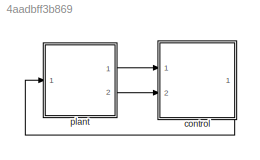
MODEL slx_4aadbff3b869
KIND model
CONFIG AbsTol = auto
CONFIG EnableMultiTasking = on
CONFIG FixedStep = auto
CONFIG MaxStep = auto
CONFIG MinStep = auto
CONFIG RelTol = 1e-3
CONFIG SampleTimeConstraint = Unconstrained
CONFIG Solver = ode45
CONFIG SolverName = ode45
CONFIG StartTime = 0.0
CONFIG StopTime = 1000
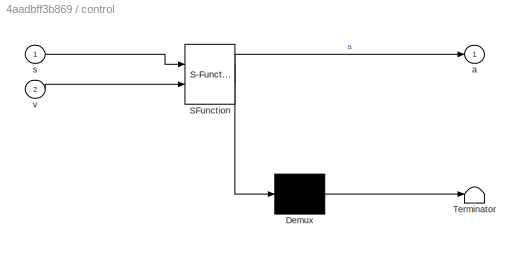
BLOCK [SubSystem] control
  ErrorFcn = Stateflow.Translate.translate
  PermitHierarchicalResolution = ExplicitOnly
  Ports = [2, 1]
  RequestExecContextInheritance = off
  SFBlockType = Chart
  TreatAsAtomicUnit = on
BLOCK [Demux] control/ Demux 
  Outputs = 1
  Ports = [1, 1]
BLOCK [S-Function] control/ SFunction 
  EnableBusSupport = on
  FunctionName = sf_sfun
  PortCounts = [2 2]
  Ports = [2, 2]
  SFcnIsStateOwnerBlock = off
  SFunctionDeploymentMode = off
  Tag = Stateflow S-Function CTCS3 1
BLOCK [Terminator] control/ Terminator 
BLOCK [Outport] control/a
  IconDisplay = Port number
BLOCK [Inport] control/s
  IconDisplay = Port number
BLOCK [Inport] control/v
  IconDisplay = Port number
  Port = 2
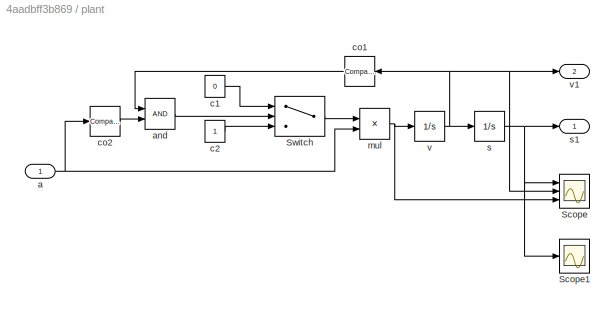
BLOCK [SubSystem] plant
  Ports = [1, 2]
  RequestExecContextInheritance = off
BLOCK [Scope] plant/Scope
  Floating = off
  NumInputPorts = 3
  Ports = [3]
  ScopeSpecificationString = Simulink.scopes.TimeScopeBlockCfg('CurrentConfiguration', extmgr.ConfigurationSet(extmgr.Configuration('Core','General UI',true),extmgr.Configuration('Core','Source UI',true),extmgr.Configuration('Sources','WiredSimulink',true,'DataLoggingSaveFormat','StructureWithTime','DataLoggingMaxPoints','10000','DataLoggingLimitDataPoints',true,'DataLoggingDecimation','1','DataLoggingDecimateData',true),extm...<+3038ch>
BLOCK [Scope] plant/Scope1
  Floating = off
  NumInputPorts = 1
  Ports = [1]
  ScopeSpecificationString = Simulink.scopes.TimeScopeBlockCfg('CurrentConfiguration', extmgr.ConfigurationSet(extmgr.Configuration('Core','General UI',true),extmgr.Configuration('Core','Source UI',true),extmgr.Configuration('Sources','WiredSimulink',true,'DataLoggingVariableName','ScopeData1','DataLoggingSaveFormat','StructureWithTime','DataLoggingMaxPoints','10000','DataLoggingLimitDataPoints',true,'DataLoggingDecimation','...<+1690ch>
BLOCK [Switch] plant/Switch
  Criteria = u2 ~= 0
  InputSameDT = off
  SaturateOnIntegerOverflow = off
BLOCK [Inport] plant/a
  IconDisplay = Port number
BLOCK [Logic] plant/and
  AllPortsSameDT = off
  OutDataTypeStr = boolean
  Ports = [2, 1]
BLOCK [Constant] plant/c1
  Value = 0
BLOCK [Constant] plant/c2
BLOCK [Reference] plant/co1  REF=simulink/Logic and Bit
Operations/Compare
To Zero
  Ports = [1, 1]
  SourceBlock = simulink/Logic and Bit\nOperations/Compare\nTo Zero
  SourceProductBaseCode = SL
  SourceProductName = Simulink
  SourceType = Compare To Zero
BLOCK [Reference] plant/co2  REF=simulink/Logic and Bit
Operations/Compare
To Zero
  Ports = [1, 1]
  SourceBlock = simulink/Logic and Bit\nOperations/Compare\nTo Zero
  SourceProductBaseCode = SL
  SourceProductName = Simulink
  SourceType = Compare To Zero
BLOCK [Product] plant/mul
  InputSameDT = off
  OutDataTypeStr = Inherit: Inherit via internal rule
  Ports = [2, 1]
  SaturateOnIntegerOverflow = off
BLOCK [Integrator] plant/s
  Ports = [1, 1]
BLOCK [Outport] plant/s1
  IconDisplay = Port number
BLOCK [Integrator] plant/v
  Ports = [1, 1]
BLOCK [Outport] plant/v1
  IconDisplay = Port number
  Port = 2
LINE control:1 -> plant:1
LINE plant/Switch:1 -> plant/mul:1
NET plant/a:1 -> plant/co2:1, plant/mul:2
LINE plant/and:1 -> plant/Switch:2
LINE plant/c1:1 -> plant/Switch:1
LINE plant/c2:1 -> plant/Switch:3
LINE plant/co1:1 -> plant/and:1
LINE plant/co2:1 -> plant/and:2
NET plant/mul:1 -> plant/Scope:3, plant/v:1
NET plant/s:1 -> plant/Scope1:1, plant/Scope:1, plant/s1:1
NET plant/v:1 -> plant/Scope:2, plant/co1:1, plant/s:1, plant/v1:1
LINE plant:1 -> control:1
LINE plant:2 -> control:2
note: NET lines group one-source signal fan-out (src -> all destinations, sorted); 1:1 wires keep LINE
CHART control states=12 transitions=31
  STATE_LABEL 'Train'
  STATE_LABEL 'l2a'
  STATE_LABEL '[s>e32]/{mode3=mode33;FB22();MAA3}'
  STATE_LABEL '[s>e22]/{mode2=mode23;FB22();MAA2}'
  STATE_LABEL 'MAA2c{FMA2();FB22()}'
  STATE_LABEL '[fv>=vr1]/{a=C_b}'
  STATE_LABEL 'MAA3c{FMA3();FB22()}'
  STATE_LABEL '[fv>=vr2]/{a=C_a}'
  STATE_LABEL '{FB22()}'
  STATE_LABEL '/{a=C_A}'
  STATE_LABEL 'FB2'
  STATE_LABEL 'SCRIPT:\nfunction FB2\nT = 0.125;\n\nvr1 = ((v211 + 2*T) * (v211 + 2*T));\nvr1 = min(vr1, ((v221*v221-2*C_b*e21)+2*C_b*s + 2*T*T));\nvr1 = min(vr1, ((v231*v231-2*C_b*e22)+2*C_b*s + 2*T*T));\nvr1 = min(vr1, ((2*C_b*s-2*C_b*e32) + 2*T*T));\n\nvr2 = ((v212 + 2*T) * (v212 + 2*T));\nvr2 = min(vr2, ((v222 *v222-2*C_b*e21)+2*C_b*s + 2*T*T));\nvr2 = min(vr2, ((v232 *v232-2*C_b*e22)+2*C_b*s + 2*T*T));\nvr2 = min(vr2, ...<+60ch>'
  STATE_LABEL 'FB22'
  STATE_LABEL 'SCRIPT:\nfunction FB22()\nT = 0.125;\n\nvr1 = ((v211 + 2*T) * (v211 + 2*T));\nvr1 = min(vr1, (v311 + 2*T) * (v311 + 2*T));\nvr1 = min(vr1, ((2*C_b*s-2*C_b*e33) + 2*T*T));\nvr1 = min(vr1, ((v331*v331-2*C_b*e32)+2*C_b*s + 2*T*T));\n\nvr2 = ((v212 + 2*T) * (v212 + 2*T));\nvr2 = min(vr2,(v312 + 2*T) * (v312 + 2*T));\nvr2 = min(vr2, ((v332 *v332-2*C_b*e32)+2*C_b*s + 2*T*T));\nvr2 = min(vr2, ((2*C_b*s-2*C_b*e33) + ...<+37ch>'
  STATE_LABEL 'FB3'
  STATE_LABEL 'SCRIPT:\nfunction FB3\nT = 0.125;\n\nvr1 = ((v311 + 2*T) * (v311 + 2*T));\nvr1 = min(vr1, ((v321*v321-2*C_b*e31)+2*C_b*s + 2*T*T));\nvr1 = min(vr1, ((v331*v331-2*C_b*e32)+2*C_b*s + 2*T*T));\nvr1 = min(vr1, ((2*C_b*s-2*C_b*e33) + 2*T*T));\n\nvr2 = ((v312 + 2*T) * (v312 + 2*T));\nvr2 = min(vr2, ((v322 *v322-2*C_b*e31)+2*C_b*s + 2*T*T));\nvr2 = min(vr2, ((v332 *v332-2*C_b*e32)+2*C_b*s + 2*T*T));\nvr2 = min(vr2, ...<+58ch>'
  STATE_LABEL 'l3'
  STATE_LABEL '[mode32==1 && v321==0]/{FB3();CONFR}'
  STATE_LABEL '[s>e32]/{mode3=mode33;MAA3}'
  STATE_LABEL 'CONF{v321=45;v322=40;FB3()}'
  STATE_LABEL 'MAA3c{FMA3();FB3()}'
  STATE_LABEL '[fv>=vr1]/{a=C_b}'
  STATE_LABEL '{FB3()}'
  STATE_LABEL '[fv>=vr2]/{a=C_a}'
  STATE_LABEL '/{a=C_A}'
  STATE_LABEL 'l2'
  STATE_LABEL '[i==0 && s>200]/{i=1;FB2();LUA}'
  STATE_LABEL '[s>e22]/{mode2=mode23;FB2();MAA2}'
  STATE_LABEL 'LU/{i=2;FB2()}'
  STATE_LABEL '[fv>=vr1]/{a=C_b}'
  STATE_LABEL 'MAA2c{FMA2();FB2()}'
  STATE_LABEL '[fv>=vr2]/{a=C_a}'
  STATE_LABEL '{FB2()}'
  STATE_LABEL '/{a=C_A}'
  STATE_LABEL 'FMA2'
  STATE_LABEL 'SCRIPT:\nfunction FMA2()\n\ne21 = e22;\ne22 = e23;\ne23 = (e23 + 32000);\nv211 = v221;\nv212 = v222;\nv221 = v231;\nv222 = v232;\nv231 = 105;\nv232 = 100;\nmode21 = mode22;\nmode22 = mode23;\nmode23 = 0;\n'
  STATE_LABEL 'FMA3'
  STATE_LABEL 'SCRIPT:\nfunction FMA3\n\ne31 = e32;\ne32 = e33;\ne33 = (e33 + 32000);\nv311 = v321;\nv312 = v322;\nv321 = v331;\nv322 = v332;\nv331 = 255;\nv332 = 250;\nmode31 = mode32;\nmode32 = mode33;\nmode33 = 0;\n'
  STATE_LABEL '[i==2 && s>=x1]/{a=C_b}'
  STATE_LABEL '[s>x2]'
